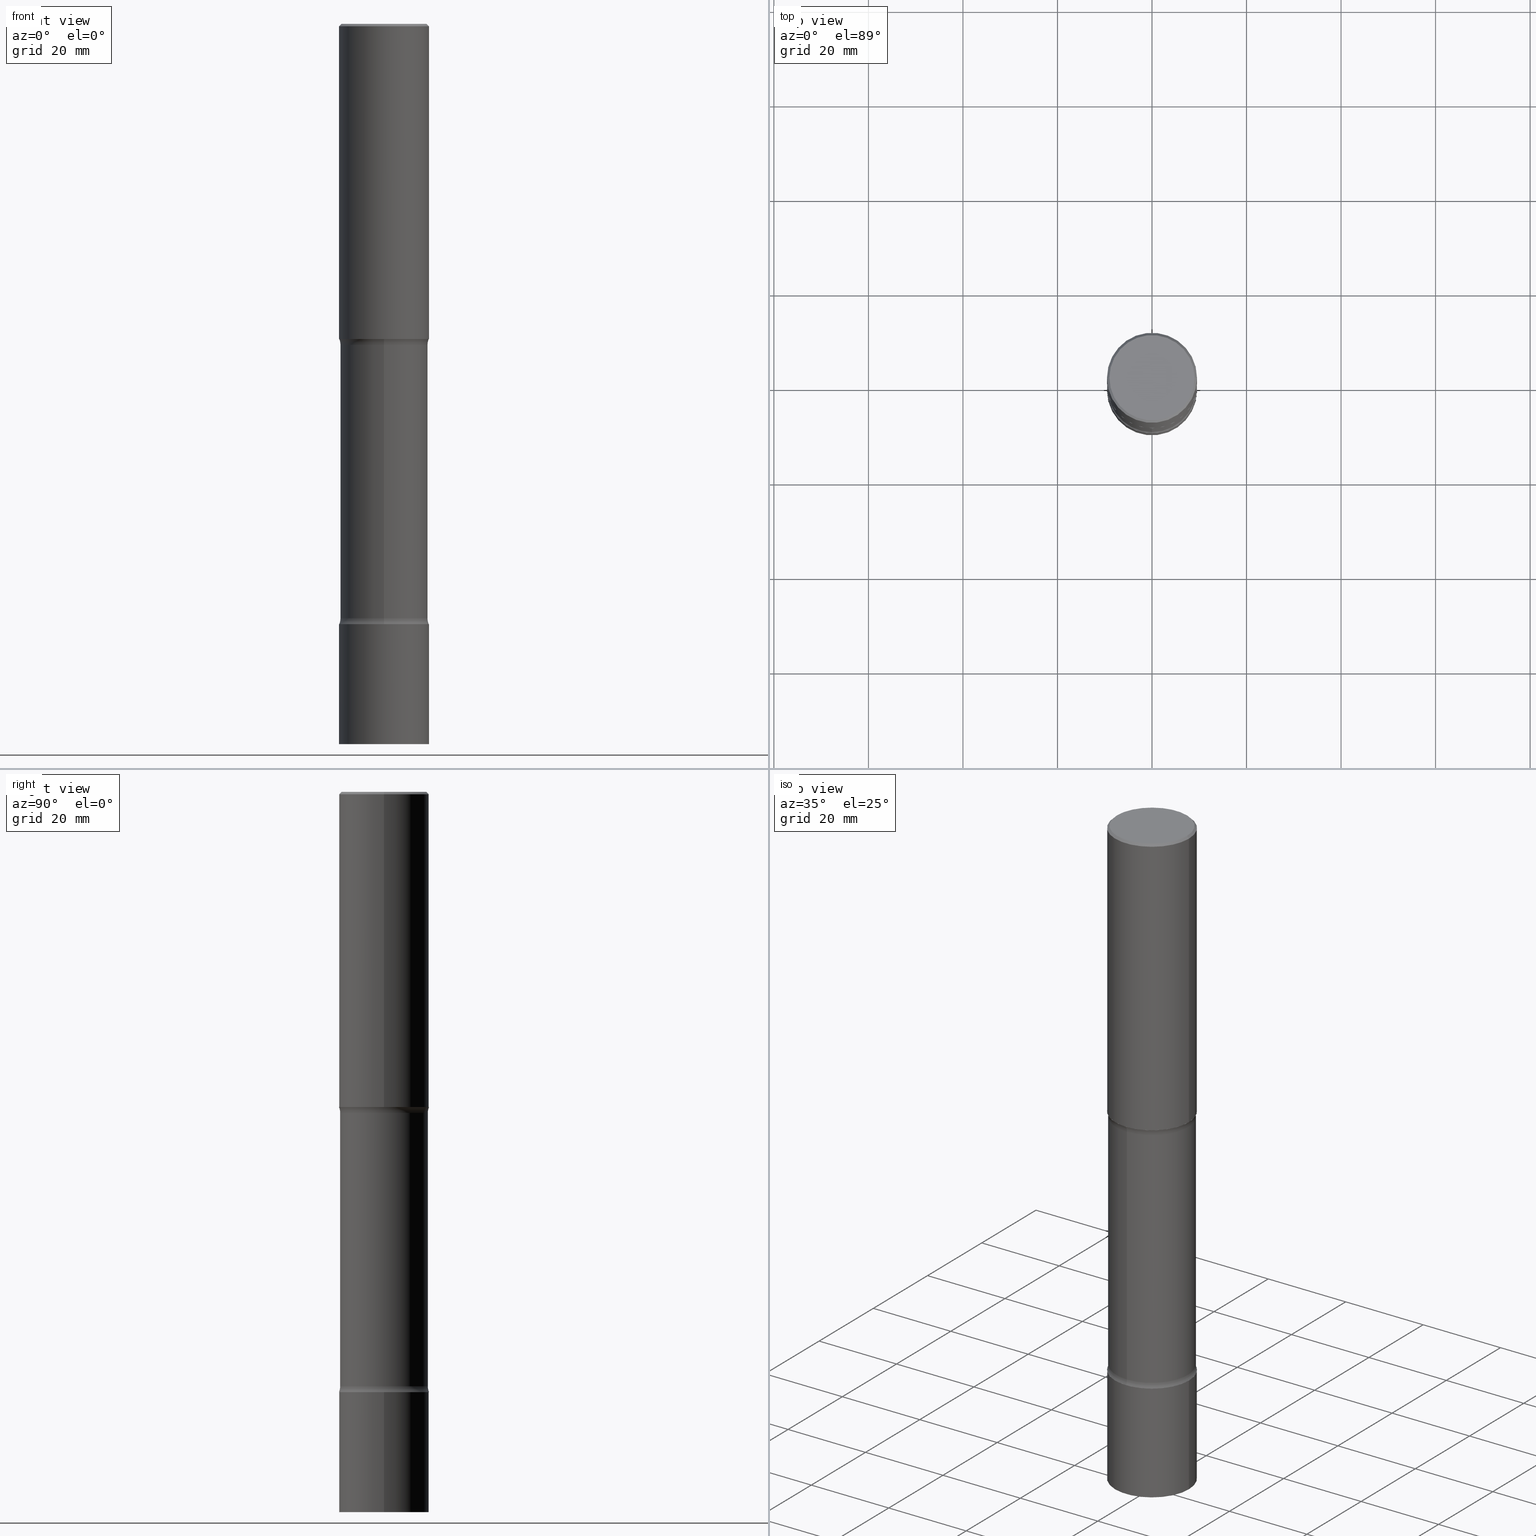
[diagram: canonical four-view strip — front | top / right | iso, engineering-drawing reading convention]
A machine part, canonical four-view strip (front | top / right | iso — engineering-drawing reading convention). The complete STEP part file that produces these views, byte-faithful:
ISO-10303-21;
HEADER;
FILE_DESCRIPTION (( 'STEP AP203' ),
    '1' );
FILE_NAME ('32742.STEP',
    '2024-03-11T13:18:59',
    ( '' ),
    ( '' ),
    'SwSTEP 2.0',
    'SolidWorks 2023',
    '' );
FILE_SCHEMA (( 'CONFIG_CONTROL_DESIGN' ));
ENDSEC;

DATA;
#1 = LOCAL_TIME ( 9, 18, 59.00000000000000000, #403 ) ;
#2 = DIRECTION ( 'NONE',  ( -2.445468806185136877E-29, 3.491481338843145188E-15, 1.000000000000000000 ) ) ;
#3 = VERTEX_POINT ( 'NONE', #91 ) ;
#4 = DIRECTION ( 'NONE',  ( 2.636232731993833523E-29, -3.218296539476719064E-15, -1.000000000000000000 ) ) ;
#5 = LINE ( 'NONE', #123, #275 ) ;
#6 = EDGE_CURVE ( 'NONE', #117, #106, #416, .T. ) ;
#7 = CARTESIAN_POINT ( 'NONE',  ( -0.3749999999999997780, 2.548781377355485141E-15, -0.02000000000000000042 ) ) ;
#8 = DIRECTION ( 'NONE',  ( 2.636232731993833523E-29, -3.218296539476719064E-15, -1.000000000000000000 ) ) ;
#9 = EDGE_CURVE ( 'NONE', #232, #315, #74, .T. ) ;
#10 = AXIS2_PLACEMENT_3D ( 'NONE', #493, #207, #412 ) ;
#11 = VECTOR ( 'NONE', #437, 39.37007874015748143 ) ;
#12 = CARTESIAN_POINT ( 'NONE',  ( 1.467281283711081958E-28, -2.094888803305887271E-14, -6.000000000000000888 ) ) ;
#13 = ORIENTED_EDGE ( 'NONE', *, *, #335, .T. ) ;
#14 = CARTESIAN_POINT ( 'NONE',  ( -1.043851414335219820E-46, 1.490343170380447200E-32, 4.268512490100411279E-18 ) ) ;
#15 = FACE_OUTER_BOUND ( 'NONE', #427, .T. ) ;
#16 = DIRECTION ( 'NONE',  ( 1.000000000000000000, 0.000000000000000000, 0.000000000000000000 ) ) ;
#17 = CARTESIAN_POINT ( 'NONE',  ( 6.095439793172492199E-29, -9.971616100212176782E-15, -2.673989794855663682 ) ) ;
#18 = DATE_TIME_ROLE ( 'classification_date' ) ;
#19 = EDGE_CURVE ( 'NONE', #315, #232, #102, .T. ) ;
#20 = DIRECTION ( 'NONE',  ( 2.438088387897960049E-29, -3.491481338843145188E-15, -1.000000000000000000 ) ) ;
#21 = AXIS2_PLACEMENT_3D ( 'NONE', #40, #463, #107 ) ;
#22 = PERSON_AND_ORGANIZATION_ROLE ( 'classification_officer' ) ;
#23 = PERSON_AND_ORGANIZATION_ROLE ( 'creator' ) ;
#24 = DIRECTION ( 'NONE',  ( 1.000000000000000000, -6.982962677686260400E-15, 0.000000000000000000 ) ) ;
#25 = DIRECTION ( 'NONE',  ( -1.000000000000000000, 6.982962677686265922E-15, -4.876176775795935793E-29 ) ) ;
#26 = AXIS2_PLACEMENT_3D ( 'NONE', #64, #367, #210 ) ;
#27 = AXIS2_PLACEMENT_3D ( 'NONE', #52, #363, #16 ) ;
#28 = EDGE_CURVE ( 'NONE', #110, #337, #222, .T. ) ;
#29 = DIRECTION ( 'NONE',  ( -2.445468806185136597E-29, 3.491481338843145583E-15, 1.000000000000000000 ) ) ;
#30 = CARTESIAN_POINT ( 'NONE',  ( 2.548781377355639757E-15, 0.3649999999999798406, -6.000000000000000888 ) ) ;
#31 = ADVANCED_FACE ( 'NONE', ( #47 ), #197, .T. ) ;
#32 = CARTESIAN_POINT ( 'NONE',  ( 5.966291292440328647E-29, -9.813952412958519891E-15, -2.625000000000000000 ) ) ;
#33 = ORIENTED_EDGE ( 'NONE', *, *, #444, .T. ) ;
#34 = AXIS2_PLACEMENT_3D ( 'NONE', #428, #186, #459 ) ;
#35 = CARTESIAN_POINT ( 'NONE',  ( 3.421651712066392725E-15, 0.4899999999999829492, -4.951010205144338983 ) ) ;
#36 = ORIENTED_EDGE ( 'NONE', *, *, #334, .T. ) ;
#37 = CC_DESIGN_PERSON_AND_ORGANIZATION_ASSIGNMENT ( #445, #211, ( #407 ) ) ;
#38 = CARTESIAN_POINT ( 'NONE',  ( 1.222734403092568523E-28, -1.745740669421572989E-14, -5.000000000000000000 ) ) ;
#39 = ORIENTED_EDGE ( 'NONE', *, *, #258, .T. ) ;
#40 = CARTESIAN_POINT ( 'NONE',  ( 0.000000000000000000, 0.000000000000000000, 0.000000000000000000 ) ) ;
#41 = ORIENTED_EDGE ( 'NONE', *, *, #6, .F. ) ;
#42 = AXIS2_PLACEMENT_3D ( 'NONE', #219, #379, #220 ) ;
#43 = DIRECTION ( 'NONE',  ( -2.445468806185136597E-29, 3.491481338843145583E-15, 1.000000000000000000 ) ) ;
#44 = EDGE_CURVE ( 'NONE', #305, #194, #5, .T. ) ;
#45 = ORIENTED_EDGE ( 'NONE', *, *, #28, .T. ) ;
#46 =( CONVERSION_BASED_UNIT ( 'INCH', #272 ) LENGTH_UNIT ( ) NAMED_UNIT ( #388 ) );
#47 = FACE_OUTER_BOUND ( 'NONE', #226, .T. ) ;
#48 = CIRCLE ( 'NONE', #328, 0.1249999999999996947 ) ;
#49 = AXIS2_PLACEMENT_3D ( 'NONE', #306, #419, #75 ) ;
#50 = EDGE_LOOP ( 'NONE', ( #221, #39, #429, #280 ) ) ;
#51 = EDGE_CURVE ( 'NONE', #232, #117, #251, .T. ) ;
#52 = CARTESIAN_POINT ( 'NONE',  ( 0.000000000000000000, 0.000000000000000000, 0.000000000000000000 ) ) ;
#53 = DIRECTION ( 'NONE',  ( 6.982962677686266711E-15, 1.000000000000000000, -2.993806020453982701E-15 ) ) ;
#54 = PRODUCT ( '32742', '32742', '', ( #88 ) ) ;
#55 = COORDINATED_UNIVERSAL_TIME_OFFSET ( 5, 0, .BEHIND. ) ;
#56 = FACE_OUTER_BOUND ( 'NONE', #460, .T. ) ;
#57 = DATE_AND_TIME ( #450, #499 ) ;
#58 = CONICAL_SURFACE ( 'NONE', #111, 0.3749999999999997780, 0.7853981633974479459 ) ;
#59 = AXIS2_PLACEMENT_3D ( 'NONE', #180, #500, #336 ) ;
#60 = PLANE ( 'NONE',  #234 ) ;
#61 = LOCAL_TIME ( 9, 18, 59.00000000000000000, #55 ) ;
#62 = PERSON_AND_ORGANIZATION ( #408, #87 ) ;
#63 = DIRECTION ( 'NONE',  ( 6.982962677686266711E-15, 1.000000000000000000, -2.993806020453982701E-15 ) ) ;
#64 = CARTESIAN_POINT ( 'NONE',  ( 4.890937612370273159E-31, -6.982962677686291609E-17, -0.02000000000000000042 ) ) ;
#65 = ADVANCED_FACE ( 'NONE', ( #15 ), #199, .T. ) ;
#66 = CARTESIAN_POINT ( 'NONE',  ( 1.209819553019352279E-28, -1.729974300696207457E-14, -4.951010205144337206 ) ) ;
#67 = CIRCLE ( 'NONE', #195, 0.1249999999999996947 ) ;
#68 = CYLINDRICAL_SURFACE ( 'NONE', #42, 0.3749999999999998890 ) ;
#69 = FACE_OUTER_BOUND ( 'NONE', #148, .T. ) ;
#70 = ORIENTED_EDGE ( 'NONE', *, *, #6, .T. ) ;
#71 = DIRECTION ( 'NONE',  ( -1.000000000000000000, 6.982962677686265922E-15, -4.876176775795935793E-29 ) ) ;
#72 = APPROVAL ( #94, 'UNSPECIFIED' ) ;
#73 = ORIENTED_EDGE ( 'NONE', *, *, #153, .F. ) ;
#74 = CIRCLE ( 'NONE', #457, 0.3650000000000005462 ) ;
#75 = DIRECTION ( 'NONE',  ( 1.000000000000000000, -6.982962677686265922E-15, 4.876176775795935793E-29 ) ) ;
#76 = ORIENTED_EDGE ( 'NONE', *, *, #335, .F. ) ;
#77 = DIRECTION ( 'NONE',  ( -2.445468806185136877E-29, 3.491481338843145188E-15, 1.000000000000000000 ) ) ;
#78 = EDGE_LOOP ( 'NONE', ( #464, #81, #277, #506 ) ) ;
#79 = EDGE_LOOP ( 'NONE', ( #108, #501, #393, #422 ) ) ;
#80 = TOROIDAL_SURFACE ( 'NONE', #368, 0.4900000000000002132, 0.1249999999999997224 ) ;
#81 = ORIENTED_EDGE ( 'NONE', *, *, #217, .T. ) ;
#82 = ADVANCED_FACE ( 'NONE', ( #247 ), #476, .T. ) ;
#83 = CARTESIAN_POINT ( 'NONE',  ( -0.3750000000000001110, -1.653861210453692402E-14, -5.000000000000000000 ) ) ;
#84 = VERTEX_POINT ( 'NONE', #293 ) ;
#85 = FACE_OUTER_BOUND ( 'NONE', #79, .T. ) ;
#86 = EDGE_LOOP ( 'NONE', ( #271, #469 ) ) ;
#87 = ORGANIZATION ( 'UNSPECIFIED', 'UNSPECIFIED', '' ) ;
#88 = MECHANICAL_CONTEXT ( 'NONE', #259, 'mechanical' ) ;
#89 = ORIENTED_EDGE ( 'NONE', *, *, #365, .F. ) ;
#90 = APPROVAL_DATE_TIME ( #57, #72 ) ;
#91 = CARTESIAN_POINT ( 'NONE',  ( 0.3750000000000001110, -2.356749903719122272E-14, -6.000000000000000888 ) ) ;
#92 = APPROVAL_DATE_TIME ( #447, #147 ) ;
#93 = FACE_OUTER_BOUND ( 'NONE', #141, .T. ) ;
#94 = APPROVAL_STATUS ( 'not_yet_approved' ) ;
#95 = AXIS2_PLACEMENT_3D ( 'NONE', #101, #136, #410 ) ;
#96 = CARTESIAN_POINT ( 'NONE',  ( -3.361644018907991680E-15, -0.4900000000000104272, -2.673989794855661906 ) ) ;
#97 = APPROVAL_PERSON_ORGANIZATION ( #168, #147, #286 ) ;
#98 = ADVANCED_FACE ( 'NONE', ( #93 ), #58, .T. ) ;
#99 = CARTESIAN_POINT ( 'NONE',  ( 2.618611004132414703E-15, 0.3749999999999907851, -2.625000000000000888 ) ) ;
#100 = CARTESIAN_POINT ( 'NONE',  ( -2.572686749164268327E-15, -0.3750000000000104916, -2.624999999999999112 ) ) ;
#101 = CARTESIAN_POINT ( 'NONE',  ( 1.222734403092568523E-28, -1.745740669421572989E-14, -5.000000000000000000 ) ) ;
#102 = CIRCLE ( 'NONE', #474, 0.3650000000000005462 ) ;
#103 = AXIS2_PLACEMENT_3D ( 'NONE', #12, #204, #122 ) ;
#104 = ADVANCED_FACE ( 'NONE', ( #174 ), #452, .T. ) ;
#105 = CARTESIAN_POINT ( 'NONE',  ( 0.3549999999999997602, -2.538996582575039076E-15, 4.268512490117958041E-18 ) ) ;
#106 = VERTEX_POINT ( 'NONE', #100 ) ;
#107 = DIRECTION ( 'NONE',  ( 1.000000000000000000, -6.982962677686266711E-15, 4.876176775795935793E-29 ) ) ;
#108 = ORIENTED_EDGE ( 'NONE', *, *, #145, .F. ) ;
#109 = CARTESIAN_POINT ( 'NONE',  ( 2.463921585354229188E-29, -3.843271519251016677E-14, -5.999999999999999112 ) ) ;
#110 = VERTEX_POINT ( 'NONE', #289 ) ;
#111 = AXIS2_PLACEMENT_3D ( 'NONE', #455, #169, #179 ) ;
#112 = CIRCLE ( 'NONE', #417, 0.3750000000000001110 ) ;
#113 = SECURITY_CLASSIFICATION ( '', '', #246 ) ;
#114 = ADVANCED_FACE ( 'NONE', ( #454 ), #332, .F. ) ;
#115 = CARTESIAN_POINT ( 'NONE',  ( -0.3749999999999997780, 2.548781377355485141E-15, -0.02000000000000000042 ) ) ;
#116 = ORIENTED_EDGE ( 'NONE', *, *, #444, .F. ) ;
#117 = VERTEX_POINT ( 'NONE', #99 ) ;
#118 = CARTESIAN_POINT ( 'NONE',  ( 6.109939798307351144E-29, -9.950851267570020612E-15, -2.673989794855663682 ) ) ;
#119 = ORIENTED_EDGE ( 'NONE', *, *, #264, .F. ) ;
#120 = DIRECTION ( 'NONE',  ( 2.636232731993833523E-29, -3.218296539476719064E-15, -1.000000000000000000 ) ) ;
#121 = ORIENTED_EDGE ( 'NONE', *, *, #9, .T. ) ;
#122 = DIRECTION ( 'NONE',  ( 1.000000000000000000, -6.982962677686260400E-15, 0.000000000000000000 ) ) ;
#123 = CARTESIAN_POINT ( 'NONE',  ( 0.3749999999999997780, -2.642516375941185662E-15, -0.02000000000000000042 ) ) ;
#124 = CIRCLE ( 'NONE', #95, 0.3750000000000001110 ) ;
#125 = APPROVAL_STATUS ( 'not_yet_approved' ) ;
#126 = PRODUCT_DEFINITION_SHAPE ( 'NONE', 'NONE',  #433 ) ;
#127 = EDGE_LOOP ( 'NONE', ( #384, #386 ) ) ;
#128 = DATE_AND_TIME ( #171, #61 ) ;
#129 = DIRECTION ( 'NONE',  ( 2.636232731993833523E-29, -3.218296539476718669E-15, -1.000000000000000000 ) ) ;
#130 = PERSON_AND_ORGANIZATION ( #408, #87 ) ;
#131 = DIRECTION ( 'NONE',  ( 2.636232731993833523E-29, -3.218296539476719064E-15, -1.000000000000000000 ) ) ;
#132 = APPROVAL_STATUS ( 'not_yet_approved' ) ;
#133 = AXIS2_PLACEMENT_3D ( 'NONE', #438, #120, #397 ) ;
#134 = AXIS2_PLACEMENT_3D ( 'NONE', #378, #370, #456 ) ;
#135 = DIRECTION ( 'NONE',  ( 2.636232731993833523E-29, -3.218296539476719064E-15, -1.000000000000000000 ) ) ;
#136 = DIRECTION ( 'NONE',  ( -2.445468806185136597E-29, 3.491481338843145583E-15, 1.000000000000000000 ) ) ;
#137 = CARTESIAN_POINT ( 'NONE',  ( 6.109939798307351144E-29, -9.950851267570020612E-15, -2.673989794855663682 ) ) ;
#138 = CARTESIAN_POINT ( 'NONE',  ( -2.504081769186464249E-15, -0.3650000000000212519, -5.999999999999998224 ) ) ;
#139 = ORIENTED_EDGE ( 'NONE', *, *, #189, .T. ) ;
#140 = FACE_OUTER_BOUND ( 'NONE', #364, .T. ) ;
#141 = EDGE_LOOP ( 'NONE', ( #343, #480, #307, #181 ) ) ;
#142 = CARTESIAN_POINT ( 'NONE',  ( 0.3749999999999998890, -2.618611004132349228E-15, 1.828566290923475362E-29 ) ) ;
#143 = ADVANCED_FACE ( 'NONE', ( #56 ), #451, .F. ) ;
#144 = ORIENTED_EDGE ( 'NONE', *, *, #9, .F. ) ;
#145 = EDGE_CURVE ( 'NONE', #282, #191, #48, .T. ) ;
#146 = CARTESIAN_POINT ( 'NONE',  ( -2.538384259175410069E-15, -0.3650000000000105382, -2.673989794855662794 ) ) ;
#147 = APPROVAL ( #125, 'UNSPECIFIED' ) ;
#148 = EDGE_LOOP ( 'NONE', ( #471, #45, #36, #116 ) ) ;
#149 = AXIS2_PLACEMENT_3D ( 'NONE', #178, #29, #294 ) ;
#150 = CC_DESIGN_SECURITY_CLASSIFICATION ( #113, ( #407 ) ) ;
#151 = PLANE ( 'NONE',  #49 ) ;
#152 = ORIENTED_EDGE ( 'NONE', *, *, #217, .F. ) ;
#153 = EDGE_CURVE ( 'NONE', #498, #191, #376, .T. ) ;
#154 = EDGE_CURVE ( 'NONE', #194, #434, #244, .T. ) ;
#155 = DIRECTION ( 'NONE',  ( 2.636232731993833523E-29, -3.218296539476719064E-15, -1.000000000000000000 ) ) ;
#156 = ORIENTED_EDGE ( 'NONE', *, *, #423, .T. ) ;
#157 = DIRECTION ( 'NONE',  ( 6.982962677686266711E-15, 1.000000000000000000, -2.993806020453982701E-15 ) ) ;
#158 = CARTESIAN_POINT ( 'NONE',  ( 6.419355616235983567E-29, -9.165138514463256612E-15, -2.625000000000000000 ) ) ;
#159 = AXIS2_PLACEMENT_3D ( 'NONE', #359, #131, #63 ) ;
#160 = FACE_OUTER_BOUND ( 'NONE', #163, .T. ) ;
#161 = ORIENTED_EDGE ( 'NONE', *, *, #488, .T. ) ;
#162 = DIRECTION ( 'NONE',  ( -2.445468806185136597E-29, 3.491481338843145583E-15, 1.000000000000000000 ) ) ;
#163 = EDGE_LOOP ( 'NONE', ( #152, #144, #273, #70 ) ) ;
#164 = DIRECTION ( 'NONE',  ( 6.982962677686266711E-15, 1.000000000000000000, -2.993806020453982701E-15 ) ) ;
#165 = CC_DESIGN_PERSON_AND_ORGANIZATION_ASSIGNMENT ( #130, #22, ( #113 ) ) ;
#166 = AXIS2_PLACEMENT_3D ( 'NONE', #399, #309, #473 ) ;
#167 = CIRCLE ( 'NONE', #458, 0.3549999999999997602 ) ;
#168 = PERSON_AND_ORGANIZATION ( #408, #87 ) ;
#169 = DIRECTION ( 'NONE',  ( 2.445468806185136597E-29, -3.491481338843145583E-15, -1.000000000000000000 ) ) ;
#170 = CC_DESIGN_PERSON_AND_ORGANIZATION_ASSIGNMENT ( #318, #321, ( #54 ) ) ;
#171 = CALENDAR_DATE ( 2024, 11, 3 ) ;
#172 = CARTESIAN_POINT ( 'NONE',  ( 1.467281283711081958E-28, -2.094888803305887271E-14, -6.000000000000000888 ) ) ;
#173 = DATE_AND_TIME ( #409, #467 ) ;
#174 = FACE_OUTER_BOUND ( 'NONE', #238, .T. ) ;
#175 = ADVANCED_FACE ( 'NONE', ( #496 ), #375, .F. ) ;
#176 = AXIS2_PLACEMENT_3D ( 'NONE', #158, #43, #319 ) ;
#177 = AXIS2_PLACEMENT_3D ( 'NONE', #118, #4, #274 ) ;
#178 = CARTESIAN_POINT ( 'NONE',  ( -1.043851414335219820E-46, 1.490343170380447200E-32, 4.268512490100411279E-18 ) ) ;
#179 = DIRECTION ( 'NONE',  ( -1.000000000000000000, 6.982962677686265922E-15, 0.000000000000000000 ) ) ;
#180 = CARTESIAN_POINT ( 'NONE',  ( 1.222734403092568523E-28, -1.745740669421572989E-14, -5.000000000000000000 ) ) ;
#181 = ORIENTED_EDGE ( 'NONE', *, *, #333, .F. ) ;
#182 = DIRECTION ( 'NONE',  ( 6.982962677686265922E-15, 1.000000000000000000, -2.913971193241875639E-15 ) ) ;
#183 = AXIS2_PLACEMENT_3D ( 'NONE', #137, #135, #448 ) ;
#184 = EDGE_LOOP ( 'NONE', ( #341, #284 ) ) ;
#185 = EDGE_CURVE ( 'NONE', #337, #110, #507, .T. ) ;
#186 = DIRECTION ( 'NONE',  ( 2.636232731993833523E-29, -3.218296539476719064E-15, -1.000000000000000000 ) ) ;
#187 = ORIENTED_EDGE ( 'NONE', *, *, #223, .F. ) ;
#188 = ADVANCED_FACE ( 'NONE', ( #490 ), #278, .F. ) ;
#189 = EDGE_CURVE ( 'NONE', #305, #504, #268, .T. ) ;
#190 = DIRECTION ( 'NONE',  ( -1.000000000000000000, 6.982962677686265922E-15, -4.883557194083112901E-29 ) ) ;
#191 = VERTEX_POINT ( 'NONE', #250 ) ;
#192 = EDGE_CURVE ( 'NONE', #3, #431, #453, .T. ) ;
#193 = PLANE ( 'NONE',  #313 ) ;
#194 = VERTEX_POINT ( 'NONE', #324 ) ;
#195 = AXIS2_PLACEMENT_3D ( 'NONE', #35, #190, #308 ) ;
#196 = APPROVAL_PERSON_ORGANIZATION ( #62, #411, #288 ) ;
#197 = CYLINDRICAL_SURFACE ( 'NONE', #483, 0.3650000000000005462 ) ;
#198 = LINE ( 'NONE', #281, #11 ) ;
#199 = CYLINDRICAL_SURFACE ( 'NONE', #233, 0.3750000000000001110 ) ;
#200 = ORIENTED_EDGE ( 'NONE', *, *, #248, .F. ) ;
#201 = UNCERTAINTY_MEASURE_WITH_UNIT (LENGTH_MEASURE( 1.000000000000000082E-05 ), #46, 'distance_accuracy_value', 'NONE');
#202 = CARTESIAN_POINT ( 'NONE',  ( 2.548781377355611753E-15, 0.3649999999999832823, -4.951010205144338983 ) ) ;
#203 = DIRECTION ( 'NONE',  ( 6.982962677686266711E-15, 1.000000000000000000, -2.993806020453982701E-15 ) ) ;
#204 = DIRECTION ( 'NONE',  ( -2.445468806185136597E-29, 3.491481338843145583E-15, 1.000000000000000000 ) ) ;
#205 = ORIENTED_EDGE ( 'NONE', *, *, #192, .T. ) ;
#206 = PERSON_AND_ORGANIZATION ( #408, #87 ) ;
#207 = DIRECTION ( 'NONE',  ( 2.445468806185136597E-29, -3.491481338843145583E-15, -1.000000000000000000 ) ) ;
#208 = APPROVAL_PERSON_ORGANIZATION ( #209, #72, #482 ) ;
#209 = PERSON_AND_ORGANIZATION ( #408, #87 ) ;
#210 = DIRECTION ( 'NONE',  ( 1.000000000000000000, -6.982962677686265922E-15, 0.000000000000000000 ) ) ;
#211 = PERSON_AND_ORGANIZATION_ROLE ( 'design_supplier' ) ;
#212 = CARTESIAN_POINT ( 'NONE',  ( 1.222734403092568523E-28, -1.745740669421572989E-14, -5.000000000000000000 ) ) ;
#213 = DIRECTION ( 'NONE',  ( -1.000000000000000000, 6.982962677686265922E-15, -4.876176775795935793E-29 ) ) ;
#214 = CLOSED_SHELL ( 'NONE', ( #353, #98, #104, #114, #357, #371 ) ) ;
#215 = CIRCLE ( 'NONE', #382, 0.3750000000000001110 ) ;
#216 = DIRECTION ( 'NONE',  ( 2.636232731993833523E-29, -3.218296539476719064E-15, -1.000000000000000000 ) ) ;
#217 = EDGE_CURVE ( 'NONE', #315, #106, #285, .T. ) ;
#218 = CC_DESIGN_DATE_AND_TIME_ASSIGNMENT ( #128, #369, ( #433 ) ) ;
#219 = CARTESIAN_POINT ( 'NONE',  ( 0.000000000000000000, 0.000000000000000000, 0.000000000000000000 ) ) ;
#220 = DIRECTION ( 'NONE',  ( 1.000000000000000000, -6.982962677686266711E-15, 4.876176775795935793E-29 ) ) ;
#221 = ORIENTED_EDGE ( 'NONE', *, *, #185, .T. ) ;
#223 = EDGE_CURVE ( 'NONE', #228, #478, #124, .T. ) ;
#222 = CIRCLE ( 'NONE', #176, 0.3750000000000000555 ) ;
#224 = DIRECTION ( 'NONE',  ( 1.000000000000000000, -6.982962677686265922E-15, 0.000000000000000000 ) ) ;
#225 = CIRCLE ( 'NONE', #495, 0.3650000000000005462 ) ;
#226 = EDGE_LOOP ( 'NONE', ( #121, #236, #73, #263 ) ) ;
#227 = CARTESIAN_POINT ( 'NONE',  ( -0.3749999999999998890, 2.664535259100374908E-15, -1.844600658845589038E-29 ) ) ;
#228 = VERTEX_POINT ( 'NONE', #326 ) ;
#229 = CARTESIAN_POINT ( 'NONE',  ( 0.3750000000000000555, -1.178374951859560821E-14, -2.625000000000000000 ) ) ;
#230 = EDGE_LOOP ( 'NONE', ( #89, #420, #441, #266 ) ) ;
#231 = CYLINDRICAL_SURFACE ( 'NONE', #392, 0.3750000000000001110 ) ;
#232 = VERTEX_POINT ( 'NONE', #487 ) ;
#233 = AXIS2_PLACEMENT_3D ( 'NONE', #287, #358, #317 ) ;
#234 = AXIS2_PLACEMENT_3D ( 'NONE', #503, #344, #296 ) ;
#235 = DIRECTION ( 'NONE',  ( -2.445468806185136597E-29, 3.491481338843145583E-15, 1.000000000000000000 ) ) ;
#236 = ORIENTED_EDGE ( 'NONE', *, *, #365, .T. ) ;
#237 = CARTESIAN_POINT ( 'NONE',  ( -0.3750000000000001110, -1.653861210453692402E-14, -6.000000000000000888 ) ) ;
#238 = EDGE_LOOP ( 'NONE', ( #350, #297, #446, #33 ) ) ;
#239 = MANIFOLD_SOLID_BREP ( 'Body-Move/Copy2[2]', #214 ) ;
#240 = ADVANCED_FACE ( 'NONE', ( #406 ), #60, .F. ) ;
#241 =( LENGTH_UNIT ( ) NAMED_UNIT ( * ) SI_UNIT ( $, .METRE. ) );
#242 = EDGE_CURVE ( 'NONE', #232, #498, #261, .T. ) ;
#243 = ORIENTED_EDGE ( 'NONE', *, *, #372, .F. ) ;
#244 = CIRCLE ( 'NONE', #26, 0.3749999999999997780 ) ;
#245 = ORIENTED_EDGE ( 'NONE', *, *, #432, .T. ) ;
#246 = SECURITY_CLASSIFICATION_LEVEL ( 'unclassified' ) ;
#247 = FACE_OUTER_BOUND ( 'NONE', #230, .T. ) ;
#248 = EDGE_CURVE ( 'NONE', #106, #117, #304, .T. ) ;
#249 = CALENDAR_DATE ( 2024, 11, 3 ) ;
#250 = CARTESIAN_POINT ( 'NONE',  ( -2.538384259175346566E-15, -0.3650000000000178102, -4.951010205144336318 ) ) ;
#251 = CIRCLE ( 'NONE', #166, 0.1249999999999999584 ) ;
#252 = AXIS2_PLACEMENT_3D ( 'NONE', #32, #426, #182 ) ;
#253 = PERSON_AND_ORGANIZATION ( #408, #87 ) ;
#254 = MANIFOLD_SOLID_BREP ( 'Body-Move/Copy2[4]', #346 ) ;
#255 = DIRECTION ( 'NONE',  ( 1.000000000000000000, -6.860497997771530774E-15, 4.844144428525341329E-29 ) ) ;
#256 = DIRECTION ( 'NONE',  ( 6.982962677686266711E-15, 1.000000000000000000, -2.993806020453982701E-15 ) ) ;
#257 = DIRECTION ( 'NONE',  ( 6.982962677686265922E-15, 1.000000000000000000, -3.218296539476718669E-15 ) ) ;
#258 = EDGE_CURVE ( 'NONE', #110, #434, #303, .T. ) ;
#259 = APPLICATION_CONTEXT ( 'configuration controlled 3d designs of mechanical parts and assemblies' ) ;
#260 = TOROIDAL_SURFACE ( 'NONE', #34, 0.4900000000000002132, 0.1249999999999997224 ) ;
#261 = LINE ( 'NONE', #30, #360 ) ;
#262 = DIRECTION ( 'NONE',  ( 2.438088387897960049E-29, -3.491481338843145188E-15, -1.000000000000000000 ) ) ;
#263 = ORIENTED_EDGE ( 'NONE', *, *, #242, .F. ) ;
#264 = EDGE_CURVE ( 'NONE', #282, #84, #215, .T. ) ;
#265 = FACE_OUTER_BOUND ( 'NONE', #301, .T. ) ;
#266 = ORIENTED_EDGE ( 'NONE', *, *, #440, .F. ) ;
#267 = LINE ( 'NONE', #142, #475 ) ;
#268 = CIRCLE ( 'NONE', #149, 0.3549999999999997602 ) ;
#269 = EDGE_LOOP ( 'NONE', ( #395, #156, #13, #243 ) ) ;
#270 = FACE_OUTER_BOUND ( 'NONE', #50, .T. ) ;
#271 = ORIENTED_EDGE ( 'NONE', *, *, #327, .T. ) ;
#272 = LENGTH_MEASURE_WITH_UNIT ( LENGTH_MEASURE( 0.02539999999999999897 ), #241 );
#273 = ORIENTED_EDGE ( 'NONE', *, *, #51, .T. ) ;
#274 = DIRECTION ( 'NONE',  ( 6.982962677686265922E-15, 1.000000000000000000, -3.218296539476719064E-15 ) ) ;
#275 = VECTOR ( 'NONE', #354, 39.37007874015748143 ) ;
#276 = APPLICATION_CONTEXT ( 'configuration controlled 3d designs of mechanical parts and assemblies' ) ;
#277 = ORIENTED_EDGE ( 'NONE', *, *, #248, .T. ) ;
#278 = TOROIDAL_SURFACE ( 'NONE', #183, 0.4900000000000004352, 0.1249999999999999306 ) ;
#279 = CC_DESIGN_APPROVAL ( #72, ( #433 ) ) ;
#280 = ORIENTED_EDGE ( 'NONE', *, *, #334, .F. ) ;
#281 = CARTESIAN_POINT ( 'NONE',  ( -0.3750000000000001110, 2.664535259100376486E-15, -1.844600658845590159E-29 ) ) ;
#282 = VERTEX_POINT ( 'NONE', #340 ) ;
#283 = DIRECTION ( 'NONE',  ( -2.445468806185136597E-29, 3.491481338843145583E-15, 1.000000000000000000 ) ) ;
#284 = ORIENTED_EDGE ( 'NONE', *, *, #28, .F. ) ;
#285 = CIRCLE ( 'NONE', #424, 0.1249999999999999584 ) ;
#286 = APPROVAL_ROLE ( '' ) ;
#287 = CARTESIAN_POINT ( 'NONE',  ( 0.000000000000000000, 0.000000000000000000, 0.000000000000000000 ) ) ;
#288 = APPROVAL_ROLE ( '' ) ;
#289 = CARTESIAN_POINT ( 'NONE',  ( -0.3750000000000000555, -1.952948811519681892E-15, -2.625000000000000000 ) ) ;
#290 = COORDINATED_UNIVERSAL_TIME_OFFSET ( 5, 0, .BEHIND. ) ;
#291 = DIRECTION ( 'NONE',  ( 2.438088387897960049E-29, -3.491481338843145188E-15, -1.000000000000000000 ) ) ;
#292 = CARTESIAN_POINT ( 'NONE',  ( -3.361644018907930937E-15, -0.4900000000000175326, -4.951010205144336318 ) ) ;
#293 = CARTESIAN_POINT ( 'NONE',  ( 2.618611004132472684E-15, 0.3749999999999826250, -5.000000000000000888 ) ) ;
#294 = DIRECTION ( 'NONE',  ( 1.000000000000000000, -6.982962677686266711E-15, 4.876231632511991546E-29 ) ) ;
#295 = CIRCLE ( 'NONE', #338, 0.3749999999999997780 ) ;
#296 = DIRECTION ( 'NONE',  ( -6.982962677686265922E-15, -1.000000000000000000, 3.218296539476718669E-15 ) ) ;
#297 = ORIENTED_EDGE ( 'NONE', *, *, #432, .F. ) ;
#298 = LINE ( 'NONE', #115, #349 ) ;
#299 = ORIENTED_EDGE ( 'NONE', *, *, #391, .F. ) ;
#300 = CARTESIAN_POINT ( 'NONE',  ( 0.3750000000000001110, -2.618611004132350411E-15, 1.828566290923476483E-29 ) ) ;
#301 = EDGE_LOOP ( 'NONE', ( #345, #389 ) ) ;
#302 = AXIS2_PLACEMENT_3D ( 'NONE', #212, #20, #25 ) ;
#303 = LINE ( 'NONE', #227, #485 ) ;
#304 = CIRCLE ( 'NONE', #252, 0.3750000000000006661 ) ;
#305 = VERTEX_POINT ( 'NONE', #105 ) ;
#306 = CARTESIAN_POINT ( 'NONE',  ( 6.419355616235983567E-29, -9.165138514463256612E-15, -2.625000000000000000 ) ) ;
#307 = ORIENTED_EDGE ( 'NONE', *, *, #154, .T. ) ;
#308 = DIRECTION ( 'NONE',  ( -6.982962677686268288E-15, -1.000000000000000000, 0.000000000000000000 ) ) ;
#309 = DIRECTION ( 'NONE',  ( -1.000000000000000000, 6.982962677686265922E-15, -4.883557194083112901E-29 ) ) ;
#310 = ADVANCED_BREP_SHAPE_REPRESENTATION ( '32742', ( #413, #239, #254, #27 ), #466 ) ;
#311 = CLOSED_SHELL ( 'NONE', ( #65, #414, #175, #355 ) ) ;
#312 = CARTESIAN_POINT ( 'NONE',  ( 6.095439793172492199E-29, -9.971616100212176782E-15, -2.673989794855663682 ) ) ;
#313 = AXIS2_PLACEMENT_3D ( 'NONE', #109, #262, #71 ) ;
#314 = DIRECTION ( 'NONE',  ( 1.000000000000000000, -6.982962677686266711E-15, 4.876231632511991546E-29 ) ) ;
#315 = VERTEX_POINT ( 'NONE', #146 ) ;
#316 = DIRECTION ( 'NONE',  ( 2.636232731993833523E-29, -3.218296539476719064E-15, -1.000000000000000000 ) ) ;
#317 = DIRECTION ( 'NONE',  ( 1.000000000000000000, -6.982962677686265922E-15, 4.876176775795935793E-29 ) ) ;
#318 = PERSON_AND_ORGANIZATION ( #408, #87 ) ;
#319 = DIRECTION ( 'NONE',  ( 1.000000000000000000, -6.982962677686266711E-15, 0.000000000000000000 ) ) ;
#320 = VECTOR ( 'NONE', #77, 39.37007874015748143 ) ;
#321 = PERSON_AND_ORGANIZATION_ROLE ( 'design_owner' ) ;
#322 = DIRECTION ( 'NONE',  ( -2.445468806185136597E-29, 3.491481338843145583E-15, 1.000000000000000000 ) ) ;
#323 = SHAPE_DEFINITION_REPRESENTATION ( #126, #310 ) ;
#324 = CARTESIAN_POINT ( 'NONE',  ( 0.3749999999999997780, -2.642516375941185662E-15, -0.02000000000000000042 ) ) ;
#325 = COORDINATED_UNIVERSAL_TIME_OFFSET ( 5, 0, .BEHIND. ) ;
#326 = CARTESIAN_POINT ( 'NONE',  ( 0.3750000000000001110, -2.007601769834807990E-14, -5.000000000000000000 ) ) ;
#327 = EDGE_CURVE ( 'NONE', #84, #282, #442, .T. ) ;
#329 = ADVANCED_FACE ( 'NONE', ( #140 ), #260, .F. ) ;
#328 = AXIS2_PLACEMENT_3D ( 'NONE', #292, #497, #415 ) ;
#330 = AXIS2_PLACEMENT_3D ( 'NONE', #172, #322, #24 ) ;
#331 = DIRECTION ( 'NONE',  ( 6.860497997771528407E-15, 1.000000000000000000, 0.000000000000000000 ) ) ;
#332 = PLANE ( 'NONE',  #494 ) ;
#333 = EDGE_CURVE ( 'NONE', #504, #434, #298, .T. ) ;
#334 = EDGE_CURVE ( 'NONE', #337, #194, #267, .T. ) ;
#335 = EDGE_CURVE ( 'NONE', #3, #228, #461, .T. ) ;
#336 = DIRECTION ( 'NONE',  ( 6.982962677686265922E-15, 1.000000000000000000, -2.913971193241879977E-15 ) ) ;
#337 = VERTEX_POINT ( 'NONE', #229 ) ;
#338 = AXIS2_PLACEMENT_3D ( 'NONE', #435, #283, #477 ) ;
#339 = CC_DESIGN_APPROVAL ( #147, ( #113 ) ) ;
#340 = CARTESIAN_POINT ( 'NONE',  ( -2.572686749164202851E-15, -0.3750000000000175970, -4.999999999999999112 ) ) ;
#341 = ORIENTED_EDGE ( 'NONE', *, *, #185, .F. ) ;
#342 = DIRECTION ( 'NONE',  ( 2.636232731993833523E-29, -3.218296539476718669E-15, -1.000000000000000000 ) ) ;
#343 = ORIENTED_EDGE ( 'NONE', *, *, #189, .F. ) ;
#344 = DIRECTION ( 'NONE',  ( -2.636232731993833523E-29, 3.218296539476718669E-15, 1.000000000000000000 ) ) ;
#345 = ORIENTED_EDGE ( 'NONE', *, *, #192, .F. ) ;
#346 = CLOSED_SHELL ( 'NONE', ( #31, #329, #188, #502, #143, #240, #449, #82 ) ) ;
#347 = FACE_OUTER_BOUND ( 'NONE', #184, .T. ) ;
#348 = CC_DESIGN_PERSON_AND_ORGANIZATION_ASSIGNMENT ( #253, #23, ( #407 ) ) ;
#349 = VECTOR ( 'NONE', #505, 39.37007874015748143 ) ;
#350 = ORIENTED_EDGE ( 'NONE', *, *, #44, .F. ) ;
#351 = LOCAL_TIME ( 9, 18, 59.00000000000000000, #325 ) ;
#352 = CARTESIAN_POINT ( 'NONE',  ( 1.209819553019352279E-28, -1.729974300696207457E-14, -4.951010205144337206 ) ) ;
#353 = ADVANCED_FACE ( 'NONE', ( #270 ), #387, .T. ) ;
#354 = DIRECTION ( 'NONE',  ( 0.7071067811865472397, -7.319954787623254468E-15, -0.7071067811865477948 ) ) ;
#355 = ADVANCED_FACE ( 'NONE', ( #265 ), #193, .T. ) ;
#356 = DIRECTION ( 'NONE',  ( 1.000000000000000000, -6.982962677686265922E-15, 4.876176775795935793E-29 ) ) ;
#357 = ADVANCED_FACE ( 'NONE', ( #347 ), #151, .F. ) ;
#358 = DIRECTION ( 'NONE',  ( -2.445468806185136597E-29, 3.491481338843145583E-15, 1.000000000000000000 ) ) ;
#359 = CARTESIAN_POINT ( 'NONE',  ( 1.486357676291951426E-28, -2.067570323369244540E-14, -5.999999999999999112 ) ) ;
#360 = VECTOR ( 'NONE', #342, 39.37007874015748143 ) ;
#361 = DIRECTION ( 'NONE',  ( 2.636232731993833523E-29, -3.218296539476719064E-15, -1.000000000000000000 ) ) ;
#362 = DESIGN_CONTEXT ( 'detailed design', #276, 'design' ) ;
#363 = DIRECTION ( 'NONE',  ( 0.000000000000000000, 0.000000000000000000, 1.000000000000000000 ) ) ;
#364 = EDGE_LOOP ( 'NONE', ( #119, #402, #462, #299 ) ) ;
#365 = EDGE_CURVE ( 'NONE', #315, #191, #470, .T. ) ;
#366 = PERSON_AND_ORGANIZATION_ROLE ( 'creator' ) ;
#367 = DIRECTION ( 'NONE',  ( -2.445468806185136597E-29, 3.491481338843145583E-15, 1.000000000000000000 ) ) ;
#368 = AXIS2_PLACEMENT_3D ( 'NONE', #472, #316, #479 ) ;
#369 = DATE_TIME_ROLE ( 'creation_date' ) ;
#370 = DIRECTION ( 'NONE',  ( -2.445468806185136597E-29, 3.491481338843145583E-15, 1.000000000000000000 ) ) ;
#371 = ADVANCED_FACE ( 'NONE', ( #69 ), #68, .T. ) ;
#372 = EDGE_CURVE ( 'NONE', #478, #228, #112, .T. ) ;
#373 = APPROVAL_DATE_TIME ( #486, #411 ) ;
#374 = CARTESIAN_POINT ( 'NONE',  ( 6.419355616235983567E-29, -9.165138514463256612E-15, -2.625000000000000000 ) ) ;
#375 = PLANE ( 'NONE',  #302 ) ;
#376 = CIRCLE ( 'NONE', #439, 0.3650000000000005462 ) ;
#377 = TOROIDAL_SURFACE ( 'NONE', #177, 0.4900000000000004352, 0.1249999999999999306 ) ;
#378 = CARTESIAN_POINT ( 'NONE',  ( 6.419355616235983567E-29, -9.165138514463256612E-15, -2.625000000000000000 ) ) ;
#379 = DIRECTION ( 'NONE',  ( -2.445468806185136597E-29, 3.491481338843145583E-15, 1.000000000000000000 ) ) ;
#380 = DIRECTION ( 'NONE',  ( -2.445468806185136597E-29, 3.491481338843145583E-15, 1.000000000000000000 ) ) ;
#381 = EDGE_LOOP ( 'NONE', ( #245, #139 ) ) ;
#382 = AXIS2_PLACEMENT_3D ( 'NONE', #468, #385, #421 ) ;
#383 = DIRECTION ( 'NONE',  ( -2.445468806185136877E-29, 3.491481338843145188E-15, 1.000000000000000000 ) ) ;
#384 = ORIENTED_EDGE ( 'NONE', *, *, #223, .T. ) ;
#385 = DIRECTION ( 'NONE',  ( 2.636232731993833523E-29, -3.218296539476719064E-15, -1.000000000000000000 ) ) ;
#386 = ORIENTED_EDGE ( 'NONE', *, *, #372, .T. ) ;
#387 = CYLINDRICAL_SURFACE ( 'NONE', #21, 0.3749999999999998890 ) ;
#388 = DIMENSIONAL_EXPONENTS ( 1.000000000000000000, 0.000000000000000000, 0.000000000000000000, 0.000000000000000000, 0.000000000000000000, 0.000000000000000000, 0.000000000000000000 ) ;
#389 = ORIENTED_EDGE ( 'NONE', *, *, #423, .F. ) ;
#390 = CARTESIAN_POINT ( 'NONE',  ( 0.000000000000000000, 0.000000000000000000, 0.000000000000000000 ) ) ;
#391 = EDGE_CURVE ( 'NONE', #84, #498, #67, .T. ) ;
#392 = AXIS2_PLACEMENT_3D ( 'NONE', #390, #235, #356 ) ;
#393 = ORIENTED_EDGE ( 'NONE', *, *, #391, .T. ) ;
#394 =( NAMED_UNIT ( * ) PLANE_ANGLE_UNIT ( ) SI_UNIT ( $, .RADIAN. ) );
#395 = ORIENTED_EDGE ( 'NONE', *, *, #488, .F. ) ;
#396 = CARTESIAN_POINT ( 'NONE',  ( -0.3549999999999997602, 2.513866563967054280E-15, 4.268512490082953109E-18 ) ) ;
#397 = DIRECTION ( 'NONE',  ( 6.982962677686265922E-15, 1.000000000000000000, -2.913971193241875639E-15 ) ) ;
#398 =( NAMED_UNIT ( * ) SI_UNIT ( $, .STERADIAN. ) SOLID_ANGLE_UNIT ( ) );
#399 = CARTESIAN_POINT ( 'NONE',  ( 3.421651712066334744E-15, 0.4899999999999904432, -2.673989794855665458 ) ) ;
#400 = CIRCLE ( 'NONE', #103, 0.3750000000000001110 ) ;
#401 = FACE_OUTER_BOUND ( 'NONE', #269, .T. ) ;
#402 = ORIENTED_EDGE ( 'NONE', *, *, #145, .T. ) ;
#403 = COORDINATED_UNIVERSAL_TIME_OFFSET ( 5, 0, .BEHIND. ) ;
#404 = CARTESIAN_POINT ( 'NONE',  ( 2.478951750578623026E-15, 0.3549999999999997602, -1.237341619044265638E-15 ) ) ;
#405 = APPLICATION_PROTOCOL_DEFINITION ( 'international standard', 'config_control_design', 1994, #276 ) ;
#406 = FACE_OUTER_BOUND ( 'NONE', #86, .T. ) ;
#407 = PRODUCT_DEFINITION_FORMATION_WITH_SPECIFIED_SOURCE ( 'ANY', '', #54, .NOT_KNOWN. ) ;
#408 = PERSON ( 'UNSPECIFIED', 'UNSPECIFIED', 'UNSPECIFIED', ('UNSPECIFIED'), ('UNSPECIFIED'), ('UNSPECIFIED') ) ;
#409 = CALENDAR_DATE ( 2024, 11, 3 ) ;
#410 = DIRECTION ( 'NONE',  ( 1.000000000000000000, -6.982962677686265922E-15, 0.000000000000000000 ) ) ;
#411 = APPROVAL ( #132, 'UNSPECIFIED' ) ;
#412 = DIRECTION ( 'NONE',  ( -1.000000000000000000, 6.982962677686265922E-15, 0.000000000000000000 ) ) ;
#413 = MANIFOLD_SOLID_BREP ( 'Body-Move/Copy2[1]', #311 ) ;
#414 = ADVANCED_FACE ( 'NONE', ( #401 ), #231, .T. ) ;
#415 = DIRECTION ( 'NONE',  ( 6.860497997771530774E-15, 1.000000000000000000, 0.000000000000000000 ) ) ;
#416 = CIRCLE ( 'NONE', #133, 0.3750000000000006661 ) ;
#417 = AXIS2_PLACEMENT_3D ( 'NONE', #38, #380, #224 ) ;
#418 = DIRECTION ( 'NONE',  ( 2.636232731993833523E-29, -3.218296539476718669E-15, -1.000000000000000000 ) ) ;
#419 = DIRECTION ( 'NONE',  ( -2.438088387897960049E-29, 3.491481338843145188E-15, 1.000000000000000000 ) ) ;
#420 = ORIENTED_EDGE ( 'NONE', *, *, #19, .T. ) ;
#421 = DIRECTION ( 'NONE',  ( 6.982962677686265922E-15, 1.000000000000000000, -2.913971193241879977E-15 ) ) ;
#422 = ORIENTED_EDGE ( 'NONE', *, *, #153, .T. ) ;
#423 = EDGE_CURVE ( 'NONE', #431, #3, #400, .T. ) ;
#424 = AXIS2_PLACEMENT_3D ( 'NONE', #96, #255, #331 ) ;
#425 = CC_DESIGN_APPROVAL ( #411, ( #407 ) ) ;
#426 = DIRECTION ( 'NONE',  ( 2.636232731993833523E-29, -3.218296539476719064E-15, -1.000000000000000000 ) ) ;
#427 = EDGE_LOOP ( 'NONE', ( #205, #161, #187, #76 ) ) ;
#428 = CARTESIAN_POINT ( 'NONE',  ( 1.210754101578475012E-28, -1.728635973968342733E-14, -4.951010205144337206 ) ) ;
#429 = ORIENTED_EDGE ( 'NONE', *, *, #154, .F. ) ;
#430 = APPLICATION_PROTOCOL_DEFINITION ( 'international standard', 'config_control_design', 1994, #259 ) ;
#431 = VERTEX_POINT ( 'NONE', #237 ) ;
#432 = EDGE_CURVE ( 'NONE', #504, #305, #167, .T. ) ;
#433 = PRODUCT_DEFINITION ( 'UNKNOWN', '', #407, #362 ) ;
#434 = VERTEX_POINT ( 'NONE', #7 ) ;
#435 = CARTESIAN_POINT ( 'NONE',  ( 4.890937612370273159E-31, -6.982962677686291609E-17, -0.02000000000000000042 ) ) ;
#436 = CARTESIAN_POINT ( 'NONE',  ( 1.486357676291951426E-28, -2.067570323369244540E-14, -5.999999999999999112 ) ) ;
#437 = DIRECTION ( 'NONE',  ( -2.445468806185136877E-29, 3.491481338843145188E-15, 1.000000000000000000 ) ) ;
#438 = CARTESIAN_POINT ( 'NONE',  ( 5.966291292440328647E-29, -9.813952412958519891E-15, -2.625000000000000000 ) ) ;
#440 = EDGE_CURVE ( 'NONE', #191, #498, #225, .T. ) ;
#439 = AXIS2_PLACEMENT_3D ( 'NONE', #66, #216, #256 ) ;
#441 = ORIENTED_EDGE ( 'NONE', *, *, #242, .T. ) ;
#442 = CIRCLE ( 'NONE', #59, 0.3750000000000001110 ) ;
#443 = CC_DESIGN_DATE_AND_TIME_ASSIGNMENT ( #173, #18, ( #113 ) ) ;
#444 = EDGE_CURVE ( 'NONE', #434, #194, #295, .T. ) ;
#445 = PERSON_AND_ORGANIZATION ( #408, #87 ) ;
#446 = ORIENTED_EDGE ( 'NONE', *, *, #333, .T. ) ;
#447 = DATE_AND_TIME ( #249, #1 ) ;
#448 = DIRECTION ( 'NONE',  ( 6.982962677686265922E-15, 1.000000000000000000, -3.218296539476719064E-15 ) ) ;
#449 = ADVANCED_FACE ( 'NONE', ( #85 ), #80, .F. ) ;
#450 = CALENDAR_DATE ( 2024, 11, 3 ) ;
#451 = PLANE ( 'NONE',  #465 ) ;
#452 = CONICAL_SURFACE ( 'NONE', #10, 0.3749999999999997780, 0.7853981633974479459 ) ;
#453 = CIRCLE ( 'NONE', #330, 0.3750000000000001110 ) ;
#454 = FACE_OUTER_BOUND ( 'NONE', #381, .T. ) ;
#455 = CARTESIAN_POINT ( 'NONE',  ( 4.890937612370273159E-31, -6.982962677686291609E-17, -0.02000000000000000042 ) ) ;
#456 = DIRECTION ( 'NONE',  ( 1.000000000000000000, -6.982962677686266711E-15, 0.000000000000000000 ) ) ;
#457 = AXIS2_PLACEMENT_3D ( 'NONE', #312, #8, #53 ) ;
#458 = AXIS2_PLACEMENT_3D ( 'NONE', #14, #162, #314 ) ;
#459 = DIRECTION ( 'NONE',  ( 6.982962677686265922E-15, 1.000000000000000000, -3.218296539476719064E-15 ) ) ;
#460 = EDGE_LOOP ( 'NONE', ( #41, #200 ) ) ;
#461 = LINE ( 'NONE', #300, #320 ) ;
#462 = ORIENTED_EDGE ( 'NONE', *, *, #440, .T. ) ;
#463 = DIRECTION ( 'NONE',  ( -2.445468806185136597E-29, 3.491481338843145583E-15, 1.000000000000000000 ) ) ;
#464 = ORIENTED_EDGE ( 'NONE', *, *, #19, .F. ) ;
#465 = AXIS2_PLACEMENT_3D ( 'NONE', #374, #129, #257 ) ;
#466 =( GEOMETRIC_REPRESENTATION_CONTEXT ( 3 ) GLOBAL_UNCERTAINTY_ASSIGNED_CONTEXT ( ( #201 ) ) GLOBAL_UNIT_ASSIGNED_CONTEXT ( ( #46, #394, #398 ) ) REPRESENTATION_CONTEXT ( 'NONE', 'WORKASPACE' ) );
#467 = LOCAL_TIME ( 9, 18, 59.00000000000000000, #492 ) ;
#468 = CARTESIAN_POINT ( 'NONE',  ( 1.222734403092568523E-28, -1.745740669421572989E-14, -5.000000000000000000 ) ) ;
#469 = ORIENTED_EDGE ( 'NONE', *, *, #264, .T. ) ;
#470 = LINE ( 'NONE', #138, #508 ) ;
#471 = ORIENTED_EDGE ( 'NONE', *, *, #258, .F. ) ;
#472 = CARTESIAN_POINT ( 'NONE',  ( 1.210754101578475012E-28, -1.728635973968342733E-14, -4.951010205144337206 ) ) ;
#473 = DIRECTION ( 'NONE',  ( -6.982962677686265133E-15, -1.000000000000000000, 0.000000000000000000 ) ) ;
#474 = AXIS2_PLACEMENT_3D ( 'NONE', #17, #361, #164 ) ;
#475 = VECTOR ( 'NONE', #2, 39.37007874015748143 ) ;
#476 = CYLINDRICAL_SURFACE ( 'NONE', #159, 0.3650000000000005462 ) ;
#477 = DIRECTION ( 'NONE',  ( 1.000000000000000000, -6.982962677686265922E-15, 0.000000000000000000 ) ) ;
#478 = VERTEX_POINT ( 'NONE', #83 ) ;
#479 = DIRECTION ( 'NONE',  ( 6.982962677686265922E-15, 1.000000000000000000, -3.218296539476719064E-15 ) ) ;
#480 = ORIENTED_EDGE ( 'NONE', *, *, #44, .T. ) ;
#481 = PRODUCT_RELATED_PRODUCT_CATEGORY ( 'detail', '', ( #54 ) ) ;
#482 = APPROVAL_ROLE ( '' ) ;
#483 = AXIS2_PLACEMENT_3D ( 'NONE', #436, #484, #203 ) ;
#484 = DIRECTION ( 'NONE',  ( 2.636232731993833523E-29, -3.218296539476719064E-15, -1.000000000000000000 ) ) ;
#485 = VECTOR ( 'NONE', #383, 39.37007874015748143 ) ;
#486 = DATE_AND_TIME ( #489, #351 ) ;
#487 = CARTESIAN_POINT ( 'NONE',  ( 2.548781377355552194E-15, 0.3649999999999905542, -2.673989794855665014 ) ) ;
#488 = EDGE_CURVE ( 'NONE', #431, #478, #198, .T. ) ;
#489 = CALENDAR_DATE ( 2024, 11, 3 ) ;
#490 = FACE_OUTER_BOUND ( 'NONE', #78, .T. ) ;
#491 = CC_DESIGN_PERSON_AND_ORGANIZATION_ASSIGNMENT ( #206, #366, ( #433 ) ) ;
#492 = COORDINATED_UNIVERSAL_TIME_OFFSET ( 5, 0, .BEHIND. ) ;
#493 = CARTESIAN_POINT ( 'NONE',  ( 4.890937612370273159E-31, -6.982962677686291609E-17, -0.02000000000000000042 ) ) ;
#494 = AXIS2_PLACEMENT_3D ( 'NONE', #404, #291, #213 ) ;
#495 = AXIS2_PLACEMENT_3D ( 'NONE', #352, #155, #157 ) ;
#496 = FACE_OUTER_BOUND ( 'NONE', #127, .T. ) ;
#497 = DIRECTION ( 'NONE',  ( 1.000000000000000000, -6.860497997771530774E-15, 4.844144428525341329E-29 ) ) ;
#498 = VERTEX_POINT ( 'NONE', #202 ) ;
#499 = LOCAL_TIME ( 9, 18, 59.00000000000000000, #290 ) ;
#500 = DIRECTION ( 'NONE',  ( 2.636232731993833523E-29, -3.218296539476719064E-15, -1.000000000000000000 ) ) ;
#501 = ORIENTED_EDGE ( 'NONE', *, *, #327, .F. ) ;
#502 = ADVANCED_FACE ( 'NONE', ( #160 ), #377, .F. ) ;
#503 = CARTESIAN_POINT ( 'NONE',  ( 1.222734403092568523E-28, -1.745740669421572989E-14, -5.000000000000000000 ) ) ;
#504 = VERTEX_POINT ( 'NONE', #396 ) ;
#505 = DIRECTION ( 'NONE',  ( -0.7071067811865472397, 2.468850131082253905E-15, -0.7071067811865477948 ) ) ;
#506 = ORIENTED_EDGE ( 'NONE', *, *, #51, .F. ) ;
#507 = CIRCLE ( 'NONE', #134, 0.3750000000000000555 ) ;
#508 = VECTOR ( 'NONE', #418, 39.37007874015748143 ) ;
ENDSEC;
END-ISO-10303-21;
